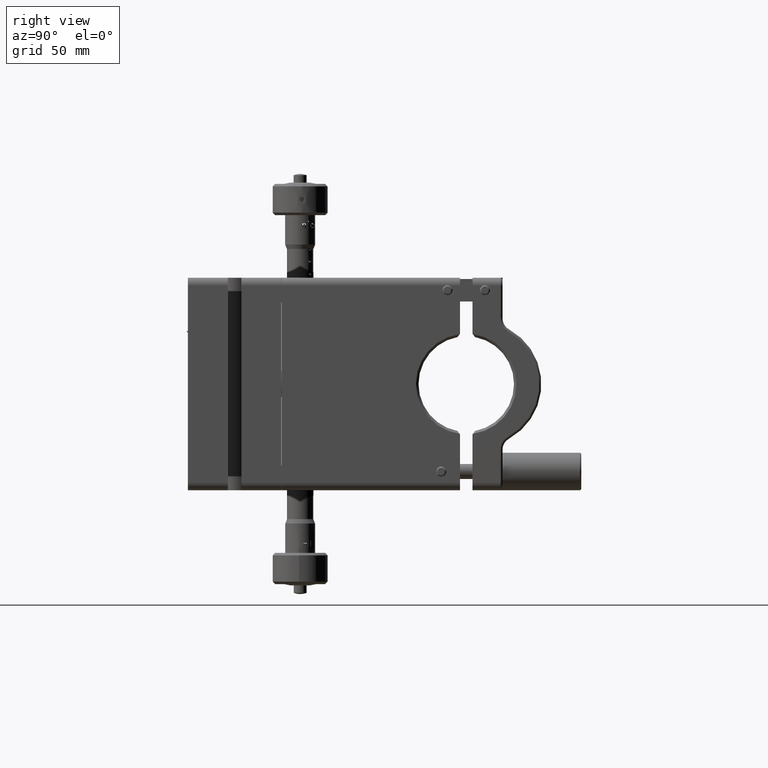
[diagram: clean part render]
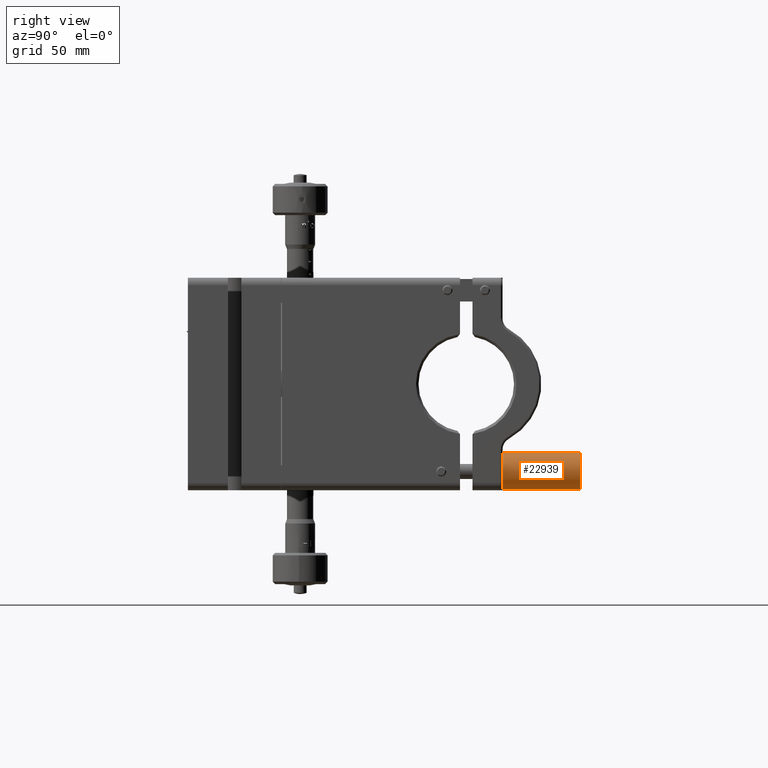
[diagram: same view with one face highlighted and labeled with its STEP entity id]
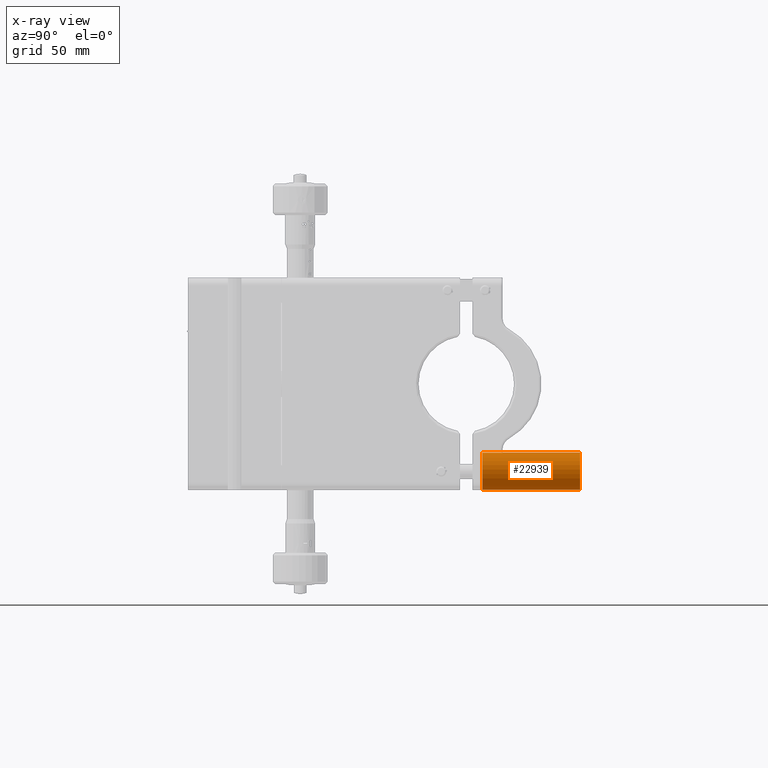
[diagram: x-ray of the same camera — body ghosted, the highlighted face saturated]
A machine part, right view. The second image highlights one B-rep face of the part: STEP entity #22939.
The next image is the same camera in x-ray: the body ghosted, the highlighted face saturated — about 0% of this face is hidden behind the body in this view.
In plain terms, the highlighted cylindrical surface (edge-blend (fillet) strip) has radius 7.5 mm, axis along (0, -1, 0).
Its self-contained STEP definition (entity closure, byte-faithful):
#3736 = CARTESIAN_POINT ( 'NONE',  ( 75.81910856120506992, 109.7999999999998835, -27.69078636439018481 ) ) ;
#3856 = CARTESIAN_POINT ( 'NONE',  ( 77.50000000000208900, 149.2999999999999545, -34.99999999999968026 ) ) ;
#5782 = LINE ( 'NONE', #40798, #30978 ) ;
#6496 = ORIENTED_EDGE ( 'NONE', *, *, #22297, .T. ) ;
#11077 = AXIS2_PLACEMENT_3D ( 'NONE', #3856, #16802, #12474 ) ;
#12318 = VERTEX_POINT ( 'NONE', #51325 ) ;
#12474 = DIRECTION ( 'NONE',  ( -0.2241188585062709182, 0.000000000000000000, 0.9745618180812576359 ) ) ;
#14489 = VERTEX_POINT ( 'NONE', #45464 ) ;
#16802 = DIRECTION ( 'NONE',  ( 2.062347367286670767E-16, -1.000000000000000000, 1.583681026312456427E-15 ) ) ;
#18957 = ORIENTED_EDGE ( 'NONE', *, *, #43328, .T. ) ;
#19483 = ORIENTED_EDGE ( 'NONE', *, *, #47199, .T. ) ;
#19681 = CARTESIAN_POINT ( 'NONE',  ( 79.18089143879910807, 149.2999999999999545, -42.30921363560910464 ) ) ;
#22297 = EDGE_CURVE ( 'NONE', #12318, #14489, #27570, .T. ) ;
#22939 = ADVANCED_FACE ( 'NONE', ( #30562 ), #56117, .T. ) ;
#27570 = CIRCLE ( 'NONE', #48627, 7.499999999999993783 ) ;
#28816 = EDGE_LOOP ( 'NONE', ( #43384, #6496, #19483, #18957 ) ) ;
#29933 = CIRCLE ( 'NONE', #49187, 7.499999999999989342 ) ;
#30562 = FACE_OUTER_BOUND ( 'NONE', #28816, .T. ) ;
#30978 = VECTOR ( 'NONE', #44828, 1000.000000000000000 ) ;
#31431 = CARTESIAN_POINT ( 'NONE',  ( 77.49999999999950262, 109.7999999999998693, -35.00000000000021316 ) ) ;
#31435 = VECTOR ( 'NONE', #37205, 1000.000000000000000 ) ;
#32319 = EDGE_CURVE ( 'NONE', #12318, #37107, #38341, .T. ) ;
#36122 = DIRECTION ( 'NONE',  ( 0.2241188585062690308, 0.000000000000000000, -0.9745618180812578579 ) ) ;
#37107 = VERTEX_POINT ( 'NONE', #48431 ) ;
#37205 = DIRECTION ( 'NONE',  ( 2.062347367286670767E-16, -1.000000000000000000, 1.583681026312456427E-15 ) ) ;
#38341 = LINE ( 'NONE', #19681, #31435 ) ;
#39215 = VERTEX_POINT ( 'NONE', #3736 ) ;
#40798 = CARTESIAN_POINT ( 'NONE',  ( 75.81910856120506992, 149.2999999999999545, -27.69078636439025232 ) ) ;
#43328 = EDGE_CURVE ( 'NONE', #39215, #37107, #29933, .T. ) ;
#43384 = ORIENTED_EDGE ( 'NONE', *, *, #32319, .F. ) ;
#44626 = DIRECTION ( 'NONE',  ( -2.062347367286670767E-16, 1.000000000000000000, -1.583681026312456427E-15 ) ) ;
#44828 = DIRECTION ( 'NONE',  ( 2.062347367286670767E-16, -1.000000000000000000, 1.583681026312456427E-15 ) ) ;
#45464 = CARTESIAN_POINT ( 'NONE',  ( 75.81910856120509834, 148.8000000000000114, -27.69078636439030916 ) ) ;
#47199 = EDGE_CURVE ( 'NONE', #14489, #39215, #5782, .T. ) ;
#48431 = CARTESIAN_POINT ( 'NONE',  ( 79.18089143879910807, 109.7999999999998550, -42.30921363560904780 ) ) ;
#48627 = AXIS2_PLACEMENT_3D ( 'NONE', #53358, #53944, #36122 ) ;
#49187 = AXIS2_PLACEMENT_3D ( 'NONE', #31431, #44626, #53541 ) ;
#51325 = CARTESIAN_POINT ( 'NONE',  ( 79.18089143879910807, 148.8000000000000114, -42.30921363560906201 ) ) ;
#53358 = CARTESIAN_POINT ( 'NONE',  ( 77.50000000000208900, 148.8000000000000114, -34.99999999999967315 ) ) ;
#53541 = DIRECTION ( 'NONE',  ( 0.2241188585062710015, -1.850371707708596732E-15, -0.9745618180812575249 ) ) ;
#53944 = DIRECTION ( 'NONE',  ( 2.062347367286670767E-16, -1.000000000000000000, 1.583681026312456427E-15 ) ) ;
#56117 = CYLINDRICAL_SURFACE ( 'NONE', #11077, 7.499999999999992006 ) ;